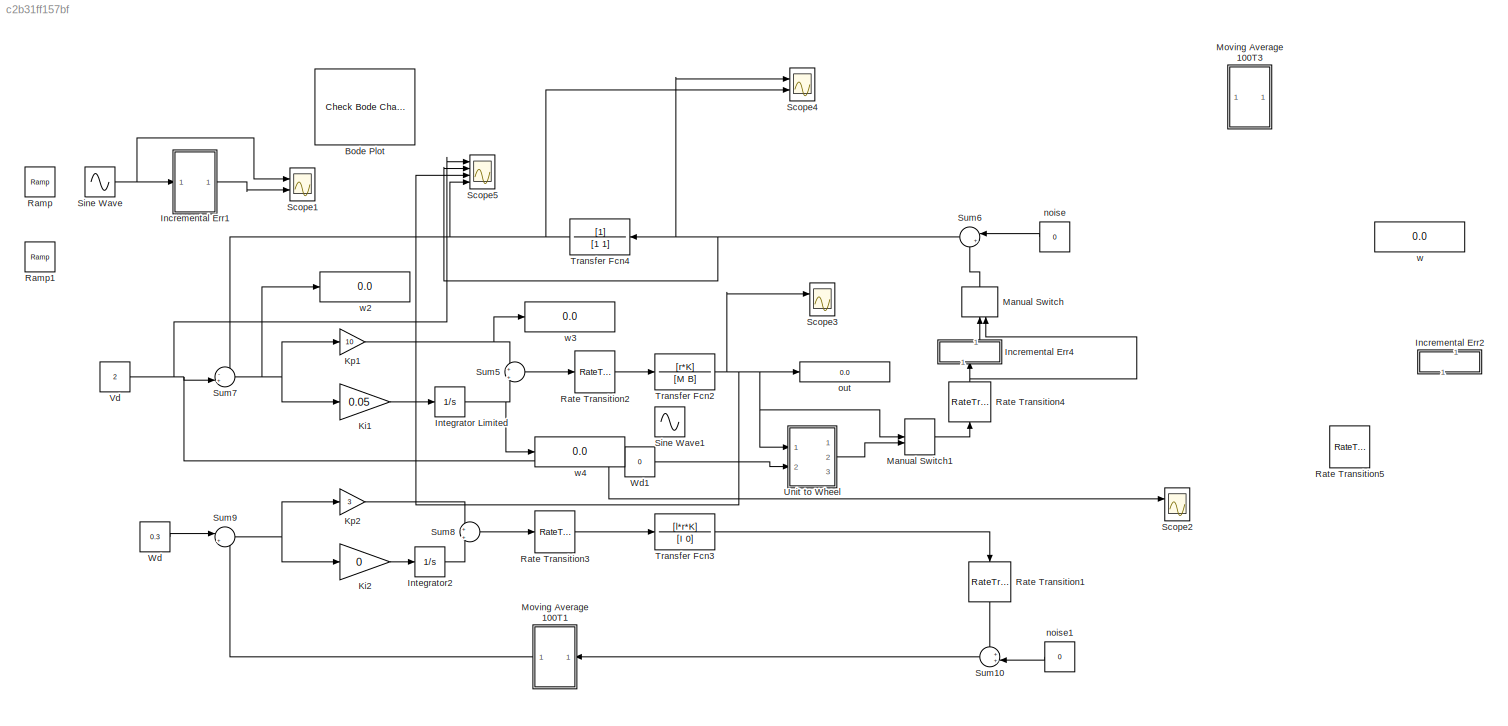
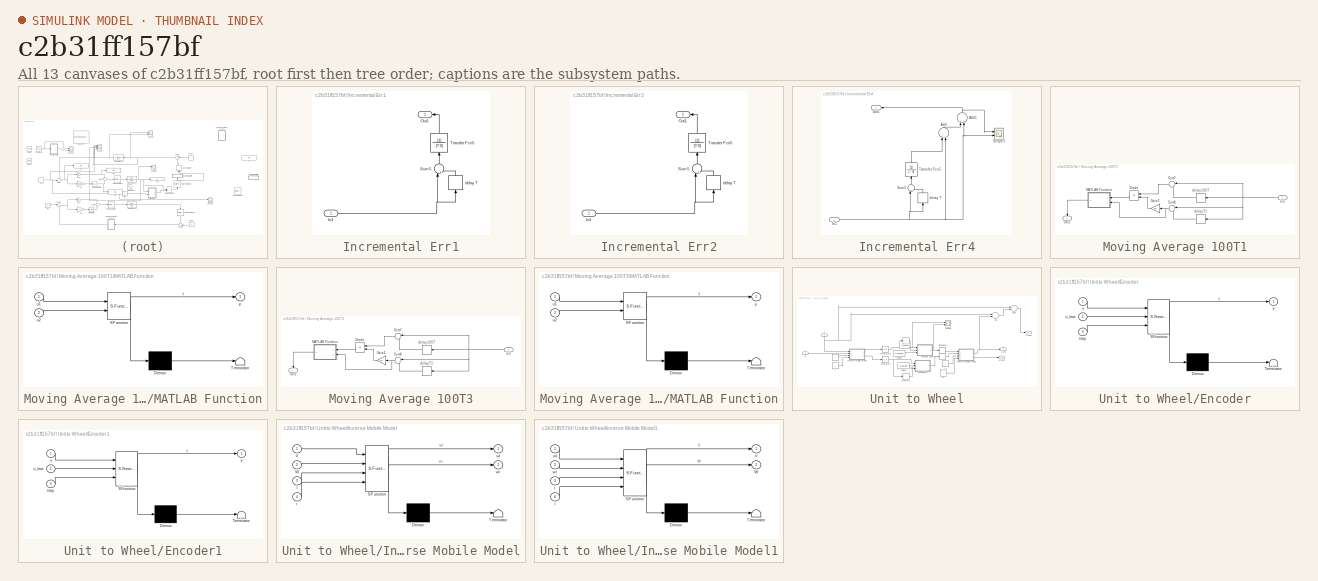
[diagram: thumbnail index - all 13 canvases of the model, root first then tree order]
MODEL slx_c2b31ff157bf
KIND model
CONFIG AbsTol = auto
CONFIG FixedStep = 0.01
CONFIG MaxStep = auto
CONFIG MinStep = auto
CONFIG RelTol = 1e-3
CONFIG SampleTimeConstraint = Unconstrained
CONFIG Solver = ode5
CONFIG SolverMode = Auto
CONFIG SolverName = ode5
CONFIG StartTime = 0.0
CONFIG StopTime = inf
BLOCK [Reference] Bode Plot  REF=slctrlblks/Model Verification/Check Bode 
Characteristics
  InstantiateOnLoad = on
  Ports = []
  SourceBlock = slctrlblks/Model Verification/Check Bode \nCharacteristics
  SourceType = Checks_Bode
BLOCK [SubSystem] Incremental Err1
  Ports = [1, 1]
  RequestExecContextInheritance = off
  Variant = off
BLOCK [Inport] Incremental Err1/In1
  IconDisplay = Port number
BLOCK [Outport] Incremental Err1/Out1
  IconDisplay = Port number
BLOCK [Sum] Incremental Err1/Sum5
  IconShape = round
  InputSameDT = off
  Inputs = |+-
  OutDataTypeStr = Inherit: Inherit via internal rule
  Ports = [2, 1]
  SaturateOnIntegerOverflow = off
BLOCK [TransferFcn] Incremental Err1/Transfer Fcn5
  Denominator = [T 0]
BLOCK [TransportDelay] Incremental Err1/delay T
  DelayTime = T
  Ports = [1, 1]
BLOCK [SubSystem] Incremental Err2
  Ports = [1, 1]
  RequestExecContextInheritance = off
  Variant = off
BLOCK [Inport] Incremental Err2/In1
  IconDisplay = Port number
BLOCK [Outport] Incremental Err2/Out1
  IconDisplay = Port number
BLOCK [Sum] Incremental Err2/Sum5
  IconShape = round
  InputSameDT = off
  Inputs = |+-
  OutDataTypeStr = Inherit: Inherit via internal rule
  Ports = [2, 1]
  SaturateOnIntegerOverflow = off
BLOCK [TransferFcn] Incremental Err2/Transfer Fcn5
  Denominator = [T 0]
BLOCK [TransportDelay] Incremental Err2/delay T
  DelayTime = T
  Ports = [1, 1]
BLOCK [SubSystem] Incremental Err4
  Ports = [1, 1]
  RequestExecContextInheritance = off
  Variant = off
BLOCK [Sum] Incremental Err4/Add
  InputSameDT = off
  Inputs = +-
  OutDataTypeStr = Inherit: Inherit via internal rule
  Ports = [2, 1]
  SaturateOnIntegerOverflow = off
BLOCK [Sum] Incremental Err4/Add1
  InputSameDT = off
  OutDataTypeStr = Inherit: Inherit via internal rule
  Ports = [2, 1]
  SaturateOnIntegerOverflow = off
BLOCK [Inport] Incremental Err4/In1
  IconDisplay = Port number
BLOCK [Outport] Incremental Err4/Out1
  IconDisplay = Port number
BLOCK [Scope] Incremental Err4/Scope3
  NumInputPorts = 2
  Ports = [2]
  ScopeSpecificationString = Simulink.scopes.TimeScopeBlockCfg('CurrentConfiguration', extmgr.ConfigurationSet(extmgr.Configuration('Core','General UI',true),extmgr.Configuration('Core','Source UI',true),extmgr.Configuration('Sources','WiredSimulink',true,'DataLoggingVariableName','ScopeData3'),extmgr.Configuration('Visuals','Time Domain',true,'SerializedDisplays',{struct('MinYLimReal','0.54152','MaxYLimReal','0.74208','YLabe...<+1440ch>
BLOCK [Sum] Incremental Err4/Sum5
  IconShape = round
  InputSameDT = off
  Inputs = |+-
  OutDataTypeStr = Inherit: Inherit via internal rule
  Ports = [2, 1]
  SaturateOnIntegerOverflow = off
BLOCK [TransferFcn] Incremental Err4/Transfer Fcn5
  Denominator = [T 0]
BLOCK [TransportDelay] Incremental Err4/delay T
  DelayTime = T
  Ports = [1, 1]
BLOCK [Integrator] Integrator Limited
  LimitOutput = on
  LowerSaturationLimit = -1000
  Ports = [1, 1]
  UpperSaturationLimit = 1000
BLOCK [Integrator] Integrator2
  Ports = [1, 1]
BLOCK [Gain] Ki1
  Gain = 0.05
  OutDataTypeStr = Inherit: Inherit via internal rule
  ParamDataTypeStr = Inherit: Inherit via internal rule
  SaturateOnIntegerOverflow = off
BLOCK [Gain] Ki2
  Gain = 0
  OutDataTypeStr = Inherit: Inherit via internal rule
  ParamDataTypeStr = Inherit: Inherit via internal rule
  SaturateOnIntegerOverflow = off
BLOCK [Gain] Kp1
  Gain = 10
  OutDataTypeStr = Inherit: Inherit via internal rule
  ParamDataTypeStr = Inherit: Inherit via internal rule
  SaturateOnIntegerOverflow = off
BLOCK [Gain] Kp2
  Gain = 3
  OutDataTypeStr = Inherit: Inherit via internal rule
  ParamDataTypeStr = Inherit: Inherit via internal rule
  SaturateOnIntegerOverflow = off
BLOCK [ManualSwitch] Manual Switch
  CurrentSetting = 0
BLOCK [ManualSwitch] Manual Switch1
BLOCK [SubSystem] Moving Average 100T1
  Ports = [1, 1]
  RequestExecContextInheritance = off
  Variant = off
BLOCK [Product] Moving Average 100T1/Divide
  InputSameDT = off
  Inputs = */
  OutDataTypeStr = Inherit: Inherit via internal rule
  Ports = [2, 1]
  RndMeth = Floor
  SaturateOnIntegerOverflow = off
BLOCK [Gain] Moving Average 100T1/Gain2
  Gain = 100
  OutDataTypeStr = Inherit: Inherit via internal rule
  ParamDataTypeStr = Inherit: Inherit via internal rule
  SaturateOnIntegerOverflow = off
BLOCK [Inport] Moving Average 100T1/In1
  IconDisplay = Port number
BLOCK [SubSystem] Moving Average 100T1/MATLAB Function
  ErrorFcn = Stateflow.Translate.translate
  PermitHierarchicalResolution = ExplicitOnly
  Ports = [2, 1]
  RequestExecContextInheritance = off
  SFBlockType = MATLAB Function
  TreatAsAtomicUnit = on
  Variant = off
BLOCK [Demux] Moving Average 100T1/MATLAB Function/ Demux 
  Outputs = 1
  Ports = [1, 1]
BLOCK [S-Function] Moving Average 100T1/MATLAB Function/ SFunction 
  EnableBusSupport = on
  FunctionName = sf_sfun
  PortCounts = [2 2]
  Ports = [2, 2]
  SFunctionDeploymentMode = off
  Tag = Stateflow S-Function diff_mobile_model_2 1
BLOCK [Terminator] Moving Average 100T1/MATLAB Function/ Terminator 
BLOCK [Inport] Moving Average 100T1/MATLAB Function/u1
  IconDisplay = Port number
BLOCK [Inport] Moving Average 100T1/MATLAB Function/u2
  IconDisplay = Port number
  Port = 2
BLOCK [Outport] Moving Average 100T1/MATLAB Function/y
  IconDisplay = Port number
BLOCK [Outport] Moving Average 100T1/Out1
  IconDisplay = Port number
BLOCK [Sum] Moving Average 100T1/Sum7
  IconShape = round
  InputSameDT = off
  Inputs = |+-
  OutDataTypeStr = Inherit: Inherit via internal rule
  Ports = [2, 1]
  SaturateOnIntegerOverflow = off
BLOCK [Sum] Moving Average 100T1/Sum8
  IconShape = round
  InputSameDT = off
  Inputs = |+-
  OutDataTypeStr = Inherit: Inherit via internal rule
  Ports = [2, 1]
  SaturateOnIntegerOverflow = off
BLOCK [TransportDelay] Moving Average 100T1/delay 100T
  DelayTime = 100
  Ports = [1, 1]
BLOCK [TransportDelay] Moving Average 100T1/delay T1
  DelayTime = T
  Ports = [1, 1]
BLOCK [SubSystem] Moving Average 100T3
  Ports = [1, 1]
  RequestExecContextInheritance = off
  Variant = off
BLOCK [Product] Moving Average 100T3/Divide
  InputSameDT = off
  Inputs = */
  OutDataTypeStr = Inherit: Inherit via internal rule
  Ports = [2, 1]
  RndMeth = Floor
  SaturateOnIntegerOverflow = off
BLOCK [Gain] Moving Average 100T3/Gain2
  Gain = 100
  OutDataTypeStr = Inherit: Inherit via internal rule
  ParamDataTypeStr = Inherit: Inherit via internal rule
  SaturateOnIntegerOverflow = off
BLOCK [Inport] Moving Average 100T3/In1
  IconDisplay = Port number
BLOCK [SubSystem] Moving Average 100T3/MATLAB Function
  ErrorFcn = Stateflow.Translate.translate
  PermitHierarchicalResolution = ExplicitOnly
  Ports = [2, 1]
  RequestExecContextInheritance = off
  SFBlockType = MATLAB Function
  TreatAsAtomicUnit = on
  Variant = off
BLOCK [Demux] Moving Average 100T3/MATLAB Function/ Demux 
  Outputs = 1
  Ports = [1, 1]
BLOCK [S-Function] Moving Average 100T3/MATLAB Function/ SFunction 
  EnableBusSupport = on
  FunctionName = sf_sfun
  PortCounts = [2 2]
  Ports = [2, 2]
  SFunctionDeploymentMode = off
  Tag = Stateflow S-Function diff_mobile_model_2 2
BLOCK [Terminator] Moving Average 100T3/MATLAB Function/ Terminator 
BLOCK [Inport] Moving Average 100T3/MATLAB Function/u1
  IconDisplay = Port number
BLOCK [Inport] Moving Average 100T3/MATLAB Function/u2
  IconDisplay = Port number
  Port = 2
BLOCK [Outport] Moving Average 100T3/MATLAB Function/y
  IconDisplay = Port number
BLOCK [Outport] Moving Average 100T3/Out1
  IconDisplay = Port number
BLOCK [Sum] Moving Average 100T3/Sum7
  IconShape = round
  InputSameDT = off
  Inputs = |+-
  OutDataTypeStr = Inherit: Inherit via internal rule
  Ports = [2, 1]
  SaturateOnIntegerOverflow = off
BLOCK [Sum] Moving Average 100T3/Sum8
  IconShape = round
  InputSameDT = off
  Inputs = |+-
  OutDataTypeStr = Inherit: Inherit via internal rule
  Ports = [2, 1]
  SaturateOnIntegerOverflow = off
BLOCK [TransportDelay] Moving Average 100T3/delay 100T
  DelayTime = 100
  Ports = [1, 1]
BLOCK [TransportDelay] Moving Average 100T3/delay T1
  DelayTime = T
  Ports = [1, 1]
BLOCK [Reference] Ramp  REF=simulink/Sources/Ramp
  Ports = [0, 1]
  SourceBlock = simulink/Sources/Ramp
  SourceType = Ramp
BLOCK [Reference] Ramp1  REF=simulink/Sources/Ramp
  Ports = [0, 1]
  SourceBlock = simulink/Sources/Ramp
  SourceType = Ramp
BLOCK [RateTransition] Rate Transition1
  OutPortSampleTime = control_ts
BLOCK [RateTransition] Rate Transition2
  OutPortSampleTime = control_ts
BLOCK [RateTransition] Rate Transition3
  OutPortSampleTime = control_ts
BLOCK [RateTransition] Rate Transition4
  OutPortSampleTime = control_ts
BLOCK [RateTransition] Rate Transition5
  OutPortSampleTime = control_ts
BLOCK [Scope] Scope1
  NumInputPorts = 2
  Ports = [2]
  ScopeSpecificationString = Simulink.scopes.TimeScopeBlockCfg('CurrentConfiguration', extmgr.ConfigurationSet(extmgr.Configuration('Core','General UI',true),extmgr.Configuration('Core','Source UI',true),extmgr.Configuration('Sources','WiredSimulink',true,'DataLoggingVariableName','ScopeData1'),extmgr.Configuration('Visuals','Time Domain',true,'SerializedDisplays',{struct('MinYLimReal','-2.15092','MaxYLimReal','2.07226','YLab...<+1459ch>
BLOCK [Scope] Scope2
  NumInputPorts = 2
  Ports = [2]
  ScopeSpecificationString = Simulink.scopes.TimeScopeBlockCfg('CurrentConfiguration', extmgr.ConfigurationSet(extmgr.Configuration('Core','General UI',true),extmgr.Configuration('Core','Source UI',true),extmgr.Configuration('Sources','WiredSimulink',true,'DataLoggingVariableName','ScopeData2'),extmgr.Configuration('Visuals','Time Domain',true,'SerializedDisplays',{struct('MinYLimReal','-0.4086','MaxYLimReal','3.67739','YLabe...<+1442ch>
BLOCK [Scope] Scope3
  NumInputPorts = 2
  Ports = [2]
  ScopeSpecificationString = Simulink.scopes.TimeScopeBlockCfg('CurrentConfiguration', extmgr.ConfigurationSet(extmgr.Configuration('Core','General UI',true),extmgr.Configuration('Core','Source UI',true),extmgr.Configuration('Sources','WiredSimulink',true,'DataLoggingVariableName','ScopeData1'),extmgr.Configuration('Visuals','Time Domain',true,'SerializedDisplays',{struct('MinYLimReal','0.19355128','MaxYLimReal','0.19355218',...<+1479ch>
BLOCK [Scope] Scope4
  NumInputPorts = 2
  Ports = [2]
  ScopeSpecificationString = Simulink.scopes.TimeScopeBlockCfg('CurrentConfiguration', extmgr.ConfigurationSet(extmgr.Configuration('Core','General UI',true),extmgr.Configuration('Core','Source UI',true),extmgr.Configuration('Sources','WiredSimulink',true,'DataLoggingVariableName','ScopeData5'),extmgr.Configuration('Visuals','Time Domain',true,'SerializedDisplays',{struct('MinYLimReal','2.46961','MaxYLimReal','2.96137','YLabe...<+1475ch>
BLOCK [Scope] Scope5
  NumInputPorts = 4
  Ports = [4]
  ScopeSpecificationString = Simulink.scopes.TimeScopeBlockCfg('CurrentConfiguration', extmgr.ConfigurationSet(extmgr.Configuration('Core','General UI',true),extmgr.Configuration('Core','Source UI',true),extmgr.Configuration('Sources','WiredSimulink',true,'DataLoggingVariableName','ScopeData6'),extmgr.Configuration('Visuals','Time Domain',true,'SerializedDisplays',{struct('MinYLimReal','-0.25','MaxYLimReal','2.25','YLabelReal...<+1483ch>
BLOCK [Sin] Sine Wave
  Ports = [0, 1]
  SampleTime = 0
BLOCK [Sin] Sine Wave1
  Ports = [0, 1]
  SampleTime = 0
BLOCK [Sum] Sum10
  IconShape = round
  InputSameDT = off
  Inputs = ++|
  OutDataTypeStr = Inherit: Inherit via internal rule
  Ports = [2, 1]
  SaturateOnIntegerOverflow = off
BLOCK [Sum] Sum5
  IconShape = round
  InputSameDT = off
  Inputs = +|+
  OutDataTypeStr = Inherit: Inherit via internal rule
  Ports = [2, 1]
  SaturateOnIntegerOverflow = off
BLOCK [Sum] Sum6
  IconShape = round
  InputSameDT = off
  Inputs = |++
  OutDataTypeStr = Inherit: Inherit via internal rule
  Ports = [2, 1]
  SaturateOnIntegerOverflow = off
BLOCK [Sum] Sum7
  IconShape = round
  InputSameDT = off
  Inputs = -+|
  OutDataTypeStr = Inherit: Inherit via internal rule
  Ports = [2, 1]
  SaturateOnIntegerOverflow = off
BLOCK [Sum] Sum8
  IconShape = round
  InputSameDT = off
  Inputs = +|+
  OutDataTypeStr = Inherit: Inherit via internal rule
  Ports = [2, 1]
  SaturateOnIntegerOverflow = off
BLOCK [Sum] Sum9
  IconShape = round
  InputSameDT = off
  Inputs = |+-
  OutDataTypeStr = Inherit: Inherit via internal rule
  Ports = [2, 1]
  SaturateOnIntegerOverflow = off
BLOCK [TransferFcn] Transfer Fcn2
  Denominator = [M B]
  Numerator = [r*K]
BLOCK [TransferFcn] Transfer Fcn3
  Denominator = [I 0]
  Numerator = [l*r*K]
BLOCK [TransferFcn] Transfer Fcn4
  Denominator = [1 1]
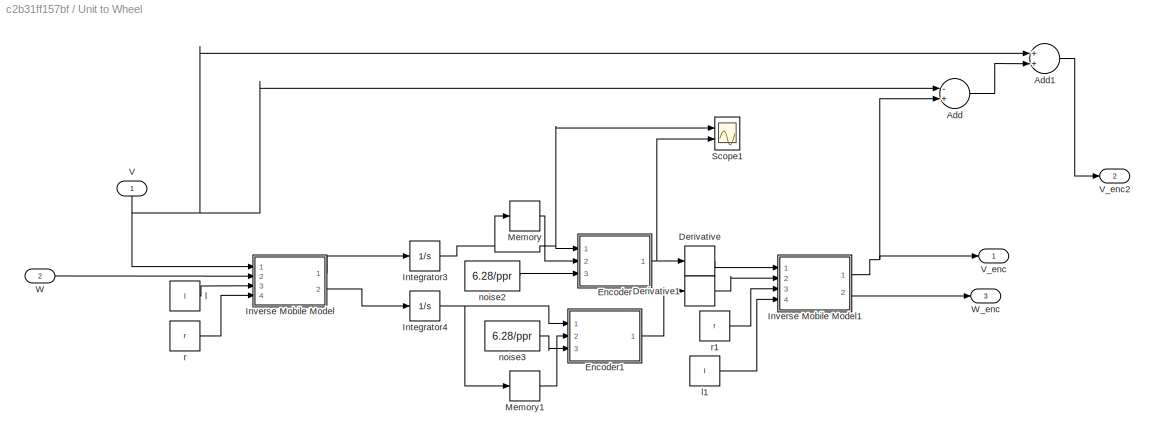
BLOCK [SubSystem] Unit to Wheel
  Ports = [2, 3]
  RequestExecContextInheritance = off
  Variant = off
BLOCK [Sum] Unit to Wheel/Add
  InputSameDT = off
  Inputs = -+
  OutDataTypeStr = Inherit: Inherit via internal rule
  Ports = [2, 1]
  SaturateOnIntegerOverflow = off
BLOCK [Sum] Unit to Wheel/Add1
  InputSameDT = off
  OutDataTypeStr = Inherit: Inherit via internal rule
  Ports = [2, 1]
  SaturateOnIntegerOverflow = off
BLOCK [Derivative] Unit to Wheel/Derivative
BLOCK [Derivative] Unit to Wheel/Derivative1
BLOCK [SubSystem] Unit to Wheel/Encoder
  ErrorFcn = Stateflow.Translate.translate
  PermitHierarchicalResolution = ExplicitOnly
  Ports = [3, 1]
  RequestExecContextInheritance = off
  SFBlockType = MATLAB Function
  TreatAsAtomicUnit = on
  Variant = off
BLOCK [Demux] Unit to Wheel/Encoder/ Demux 
  Outputs = 1
  Ports = [1, 1]
BLOCK [S-Function] Unit to Wheel/Encoder/ SFunction 
  EnableBusSupport = on
  FunctionName = sf_sfun
  PortCounts = [3 2]
  Ports = [3, 2]
  SFunctionDeploymentMode = off
  Tag = Stateflow S-Function diff_mobile_model_2 4
BLOCK [Terminator] Unit to Wheel/Encoder/ Terminator 
BLOCK [Inport] Unit to Wheel/Encoder/step
  IconDisplay = Port number
  Port = 3
BLOCK [Inport] Unit to Wheel/Encoder/u
  IconDisplay = Port number
BLOCK [Inport] Unit to Wheel/Encoder/u_last
  IconDisplay = Port number
  Port = 2
BLOCK [Outport] Unit to Wheel/Encoder/y
  IconDisplay = Port number
BLOCK [SubSystem] Unit to Wheel/Encoder1
  ErrorFcn = Stateflow.Translate.translate
  PermitHierarchicalResolution = ExplicitOnly
  Ports = [3, 1]
  RequestExecContextInheritance = off
  SFBlockType = MATLAB Function
  TreatAsAtomicUnit = on
  Variant = off
BLOCK [Demux] Unit to Wheel/Encoder1/ Demux 
  Outputs = 1
  Ports = [1, 1]
BLOCK [S-Function] Unit to Wheel/Encoder1/ SFunction 
  EnableBusSupport = on
  FunctionName = sf_sfun
  PortCounts = [3 2]
  Ports = [3, 2]
  SFunctionDeploymentMode = off
  Tag = Stateflow S-Function diff_mobile_model_2 5
BLOCK [Terminator] Unit to Wheel/Encoder1/ Terminator 
BLOCK [Inport] Unit to Wheel/Encoder1/step
  IconDisplay = Port number
  Port = 3
BLOCK [Inport] Unit to Wheel/Encoder1/u
  IconDisplay = Port number
BLOCK [Inport] Unit to Wheel/Encoder1/u_last
  IconDisplay = Port number
  Port = 2
BLOCK [Outport] Unit to Wheel/Encoder1/y
  IconDisplay = Port number
BLOCK [Integrator] Unit to Wheel/Integrator3
  Ports = [1, 1]
BLOCK [Integrator] Unit to Wheel/Integrator4
  Ports = [1, 1]
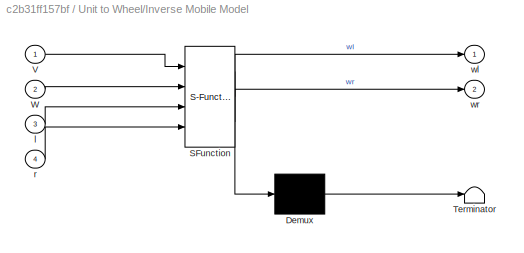
BLOCK [SubSystem] Unit to Wheel/Inverse Mobile Model
  ErrorFcn = Stateflow.Translate.translate
  PermitHierarchicalResolution = ExplicitOnly
  Ports = [4, 2]
  RequestExecContextInheritance = off
  SFBlockType = MATLAB Function
  TreatAsAtomicUnit = on
  Variant = off
BLOCK [Demux] Unit to Wheel/Inverse Mobile Model/ Demux 
  Outputs = 1
  Ports = [1, 1]
BLOCK [S-Function] Unit to Wheel/Inverse Mobile Model/ SFunction 
  EnableBusSupport = on
  FunctionName = sf_sfun
  PortCounts = [4 3]
  Ports = [4, 3]
  SFunctionDeploymentMode = off
  Tag = Stateflow S-Function diff_mobile_model_2 3
BLOCK [Terminator] Unit to Wheel/Inverse Mobile Model/ Terminator 
BLOCK [Inport] Unit to Wheel/Inverse Mobile Model/V
  IconDisplay = Port number
BLOCK [Inport] Unit to Wheel/Inverse Mobile Model/W
  IconDisplay = Port number
  Port = 2
BLOCK [Inport] Unit to Wheel/Inverse Mobile Model/l
  IconDisplay = Port number
  Port = 3
BLOCK [Inport] Unit to Wheel/Inverse Mobile Model/r
  IconDisplay = Port number
  Port = 4
BLOCK [Outport] Unit to Wheel/Inverse Mobile Model/wl
  IconDisplay = Port number
BLOCK [Outport] Unit to Wheel/Inverse Mobile Model/wr
  IconDisplay = Port number
  Port = 2
BLOCK [SubSystem] Unit to Wheel/Inverse Mobile Model1
  ErrorFcn = Stateflow.Translate.translate
  PermitHierarchicalResolution = ExplicitOnly
  Ports = [4, 2]
  RequestExecContextInheritance = off
  SFBlockType = MATLAB Function
  TreatAsAtomicUnit = on
  Variant = off
BLOCK [Demux] Unit to Wheel/Inverse Mobile Model1/ Demux 
  Outputs = 1
  Ports = [1, 1]
BLOCK [S-Function] Unit to Wheel/Inverse Mobile Model1/ SFunction 
  EnableBusSupport = on
  FunctionName = sf_sfun
  PortCounts = [4 3]
  Ports = [4, 3]
  SFunctionDeploymentMode = off
  Tag = Stateflow S-Function diff_mobile_model_2 6
BLOCK [Terminator] Unit to Wheel/Inverse Mobile Model1/ Terminator 
BLOCK [Outport] Unit to Wheel/Inverse Mobile Model1/V
  IconDisplay = Port number
BLOCK [Outport] Unit to Wheel/Inverse Mobile Model1/W
  IconDisplay = Port number
  Port = 2
BLOCK [Inport] Unit to Wheel/Inverse Mobile Model1/l
  IconDisplay = Port number
  Port = 4
BLOCK [Inport] Unit to Wheel/Inverse Mobile Model1/r
  IconDisplay = Port number
  Port = 3
BLOCK [Inport] Unit to Wheel/Inverse Mobile Model1/wl
  IconDisplay = Port number
BLOCK [Inport] Unit to Wheel/Inverse Mobile Model1/wr
  IconDisplay = Port number
  Port = 2
BLOCK [Memory] Unit to Wheel/Memory
BLOCK [Memory] Unit to Wheel/Memory1
BLOCK [Scope] Unit to Wheel/Scope1
  NumInputPorts = 2
  Ports = [2]
  ScopeSpecificationString = Simulink.scopes.TimeScopeBlockCfg('CurrentConfiguration', extmgr.ConfigurationSet(extmgr.Configuration('Core','General UI',true),extmgr.Configuration('Core','Source UI',true),extmgr.Configuration('Sources','WiredSimulink',true,'DataLoggingVariableName','ScopeData4'),extmgr.Configuration('Visuals','Time Domain',true,'SerializedDisplays',{struct('MinYLimReal','0.15948','MaxYLimReal','0.2351','YLabel...<+1445ch>
BLOCK [Inport] Unit to Wheel/V
  IconDisplay = Port number
BLOCK [Outport] Unit to Wheel/V_enc
  IconDisplay = Port number
BLOCK [Outport] Unit to Wheel/V_enc2
  IconDisplay = Port number
  Port = 2
BLOCK [Inport] Unit to Wheel/W
  IconDisplay = Port number
  Port = 2
BLOCK [Outport] Unit to Wheel/W_enc
  IconDisplay = Port number
  Port = 3
BLOCK [Constant] Unit to Wheel/l
  Value = l
BLOCK [Constant] Unit to Wheel/l1
  Value = l
BLOCK [Constant] Unit to Wheel/noise2
  Value = 6.28/ppr
BLOCK [Constant] Unit to Wheel/noise3
  Value = 6.28/ppr
BLOCK [Constant] Unit to Wheel/r
  Value = r
BLOCK [Constant] Unit to Wheel/r1
  Value = r
BLOCK [Constant] Vd
  Value = 2
BLOCK [Constant] Wd
  Value = 0.3
BLOCK [Constant] Wd1
  Value = 0
BLOCK [Constant] noise
  Value = 0
BLOCK [Constant] noise1
  Value = 0
BLOCK [Display] out
  Decimation = 1
  Ports = [1]
BLOCK [Display] w
  Decimation = 1
  Ports = [1]
BLOCK [Display] w2
  Decimation = 1
  Ports = [1]
BLOCK [Display] w3
  Decimation = 1
  Ports = [1]
BLOCK [Display] w4
  Decimation = 1
  Ports = [1]
NET Incremental Err1/In1:1 -> Incremental Err1/Sum5:1, Incremental Err1/delay T:1
LINE Incremental Err1/Sum5:1 -> Incremental Err1/Transfer Fcn5:1
LINE Incremental Err1/Transfer Fcn5:1 -> Incremental Err1/Out1:1
LINE Incremental Err1/delay T:1 -> Incremental Err1/Sum5:2
LINE Incremental Err1:1 -> Scope1:2
NET Incremental Err2/In1:1 -> Incremental Err2/Sum5:1, Incremental Err2/delay T:1
LINE Incremental Err2/Sum5:1 -> Incremental Err2/Transfer Fcn5:1
LINE Incremental Err2/Transfer Fcn5:1 -> Incremental Err2/Out1:1
LINE Incremental Err2/delay T:1 -> Incremental Err2/Sum5:2
NET Incremental Err4/Add1:1 -> Incremental Err4/Out1:1, Incremental Err4/Scope3:1
LINE Incremental Err4/Add:1 -> Incremental Err4/Add1:1
NET Incremental Err4/In1:1 -> Incremental Err4/Add1:2, Incremental Err4/Add:2, Incremental Err4/Scope3:2, Incremental Err4/Sum5:1, Incremental Err4/delay T:1
LINE Incremental Err4/Sum5:1 -> Incremental Err4/Transfer Fcn5:1
LINE Incremental Err4/Transfer Fcn5:1 -> Incremental Err4/Add:1
LINE Incremental Err4/delay T:1 -> Incremental Err4/Sum5:2
LINE Incremental Err4:1 -> Manual Switch:1
NET Integrator Limited:1 -> Sum5:2, w4:1
LINE Integrator2:1 -> Sum8:2
LINE Ki1:1 -> Integrator Limited:1
LINE Ki2:1 -> Integrator2:1
NET Kp1:1 -> Sum5:1, w3:1
LINE Kp2:1 -> Sum8:1
LINE Manual Switch1:1 -> Rate Transition4:1
LINE Manual Switch:1 -> Sum6:2
LINE Moving Average 100T1/Divide:1 -> Moving Average 100T1/MATLAB Function:1
LINE Moving Average 100T1/Gain2:1 -> Moving Average 100T1/Divide:2
NET Moving Average 100T1/In1:1 -> Moving Average 100T1/Sum7:1, Moving Average 100T1/Sum8:1, Moving Average 100T1/delay 100T:1, Moving Average 100T1/delay T1:1
LINE Moving Average 100T1/MATLAB Function:1 -> Moving Average 100T1/Out1:1
LINE Moving Average 100T1/Sum7:1 -> Moving Average 100T1/Divide:1
NET Moving Average 100T1/Sum8:1 -> Moving Average 100T1/Gain2:1, Moving Average 100T1/MATLAB Function:2
LINE Moving Average 100T1/delay 100T:1 -> Moving Average 100T1/Sum7:2
LINE Moving Average 100T1/delay T1:1 -> Moving Average 100T1/Sum8:2
LINE Moving Average 100T1:1 -> Sum9:2
LINE Moving Average 100T3/Divide:1 -> Moving Average 100T3/MATLAB Function:1
LINE Moving Average 100T3/Gain2:1 -> Moving Average 100T3/Divide:2
NET Moving Average 100T3/In1:1 -> Moving Average 100T3/Sum7:1, Moving Average 100T3/Sum8:1, Moving Average 100T3/delay 100T:1, Moving Average 100T3/delay T1:1
LINE Moving Average 100T3/MATLAB Function:1 -> Moving Average 100T3/Out1:1
LINE Moving Average 100T3/Sum7:1 -> Moving Average 100T3/Divide:1
NET Moving Average 100T3/Sum8:1 -> Moving Average 100T3/Gain2:1, Moving Average 100T3/MATLAB Function:2
LINE Moving Average 100T3/delay 100T:1 -> Moving Average 100T3/Sum7:2
LINE Moving Average 100T3/delay T1:1 -> Moving Average 100T3/Sum8:2
LINE Rate Transition1:1 -> Sum10:1
LINE Rate Transition2:1 -> Transfer Fcn2:1
LINE Rate Transition3:1 -> Transfer Fcn3:1
NET Rate Transition4:1 -> Incremental Err4:1, Manual Switch:2
NET Sine Wave:1 -> Incremental Err1:1, Scope1:1
LINE Sum10:1 -> Moving Average 100T1:1
LINE Sum5:1 -> Rate Transition2:1
NET Sum6:1 -> Scope4:1, Scope5:2, Transfer Fcn4:1
NET Sum7:1 -> Ki1:1, Kp1:1, w2:1
LINE Sum8:1 -> Rate Transition3:1
NET Sum9:1 -> Ki2:1, Kp2:1
NET Transfer Fcn2:1 -> Manual Switch1:1, Scope3:1, Scope5:3, Unit to Wheel:1, out:1
LINE Transfer Fcn3:1 -> Rate Transition1:1
NET Transfer Fcn4:1 -> Scope4:2, Scope5:4, Sum7:1
LINE Unit to Wheel/Add1:1 -> Unit to Wheel/V_enc2:1
LINE Unit to Wheel/Add:1 -> Unit to Wheel/Add1:2
LINE Unit to Wheel/Derivative1:1 -> Unit to Wheel/Inverse Mobile Model1:2
LINE Unit to Wheel/Derivative:1 -> Unit to Wheel/Inverse Mobile Model1:1
LINE Unit to Wheel/Encoder1:1 -> Unit to Wheel/Derivative1:1
NET Unit to Wheel/Encoder:1 -> Unit to Wheel/Derivative:1, Unit to Wheel/Scope1:2
NET Unit to Wheel/Integrator3:1 -> Unit to Wheel/Encoder:1, Unit to Wheel/Memory:1, Unit to Wheel/Scope1:1
NET Unit to Wheel/Integrator4:1 -> Unit to Wheel/Encoder1:1, Unit to Wheel/Memory1:1
NET Unit to Wheel/Inverse Mobile Model1:1 -> Unit to Wheel/Add:2, Unit to Wheel/V_enc:1
LINE Unit to Wheel/Inverse Mobile Model1:2 -> Unit to Wheel/W_enc:1
LINE Unit to Wheel/Inverse Mobile Model:1 -> Unit to Wheel/Integrator3:1
LINE Unit to Wheel/Inverse Mobile Model:2 -> Unit to Wheel/Integrator4:1
LINE Unit to Wheel/Memory1:1 -> Unit to Wheel/Encoder1:2
LINE Unit to Wheel/Memory:1 -> Unit to Wheel/Encoder:2
NET Unit to Wheel/V:1 -> Unit to Wheel/Add1:1, Unit to Wheel/Add:1, Unit to Wheel/Inverse Mobile Model:1
LINE Unit to Wheel/W:1 -> Unit to Wheel/Inverse Mobile Model:2
LINE Unit to Wheel/l1:1 -> Unit to Wheel/Inverse Mobile Model1:4
LINE Unit to Wheel/l:1 -> Unit to Wheel/Inverse Mobile Model:3
LINE Unit to Wheel/noise2:1 -> Unit to Wheel/Encoder:3
LINE Unit to Wheel/noise3:1 -> Unit to Wheel/Encoder1:3
LINE Unit to Wheel/r1:1 -> Unit to Wheel/Inverse Mobile Model1:3
LINE Unit to Wheel/r:1 -> Unit to Wheel/Inverse Mobile Model:4
LINE Unit to Wheel:2 -> Manual Switch1:2
NET Vd:1 -> Scope2:1, Scope5:1, Sum7:2
LINE Wd1:1 -> Unit to Wheel:2
LINE Wd:1 -> Sum9:1
LINE noise1:1 -> Sum10:2
LINE noise:1 -> Sum6:1
note: NET lines group one-source signal fan-out (src -> all destinations, sorted); 1:1 wires keep LINE
CHART Moving Average 100T1/MATLAB Function states=1 transitions=1
  STATE_LABEL 'eML_blk_kernel()'
  STATE_LABEL 'SCRIPT:\nfunction y = fcn(u1,u2)\n%#codegen\n\nif u2==0\n    y=1/100;\nelse\n    y=u1;\nend\n'
CHART Moving Average 100T3/MATLAB Function states=1 transitions=1
  STATE_LABEL 'eML_blk_kernel()'
  STATE_LABEL 'SCRIPT:\nfunction y = fcn(u1,u2)\n%#codegen\n\nif u2==0\n    y=1/100;\nelse\n    y=u1;\nend\n'
CHART Unit to Wheel/Inverse Mobile Model states=1 transitions=1
  STATE_LABEL 'eML_blk_kernel()'
  STATE_LABEL 'SCRIPT:\nfunction [wl,wr] = fcn(V,W,l,r)\n%#codegen\nwl=(2*V-W*2*l)/(2*r);\nwr=(2*V+W*2*l)/(2*r);\n'
CHART Unit to Wheel/Encoder states=1 transitions=1
  STATE_LABEL 'eML_blk_kernel()'
  STATE_LABEL 'SCRIPT:\nfunction y = fcn(u,u_last,step)\n%#codegen\nif (u-u_last)>=0\n  y=step*floor(u/step);\nelse\n  y=step*ceil(u/step); \nend\n'
CHART Unit to Wheel/Encoder1 states=1 transitions=1
  STATE_LABEL 'eML_blk_kernel()'
  STATE_LABEL 'SCRIPT:\nfunction y = fcn(u,u_last,step)\n%#codegen\nif (u-u_last)>=0\n  y=step*floor(u/step);\nelse\n  y=step*ceil(u/step); \nend\n'
CHART Unit to Wheel/Inverse Mobile Model1 states=1 transitions=1
  STATE_LABEL 'eML_blk_kernel()'
  STATE_LABEL 'SCRIPT:\nfunction [V,W] = fcn(wl,wr,r,l)\n%#codegen\nV=r*(wr+wl)/2;\nW=r*(wr-wl)/l;'
